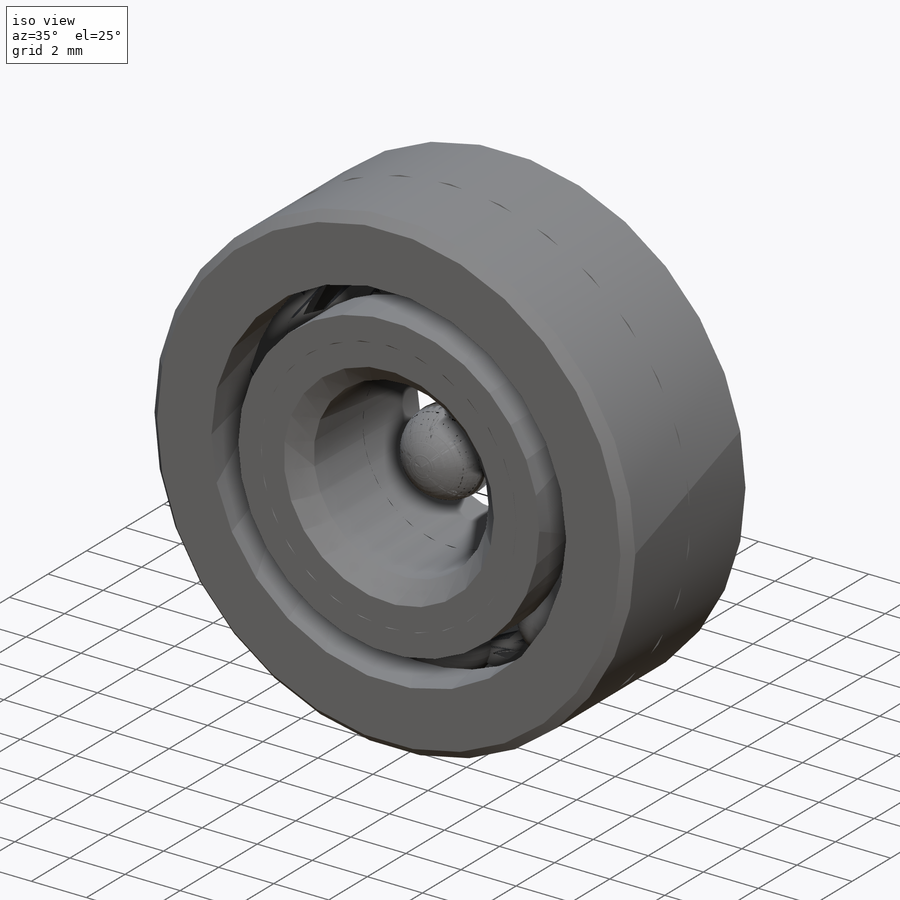
[diagram: iso view]
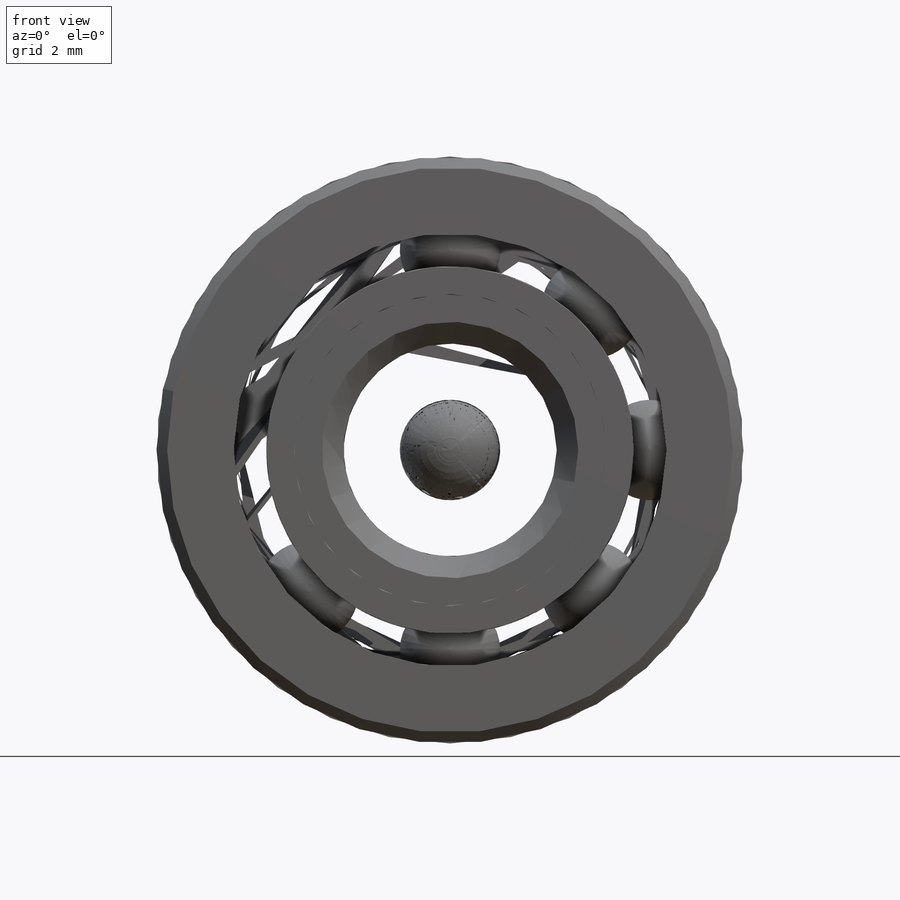
[diagram: front view]
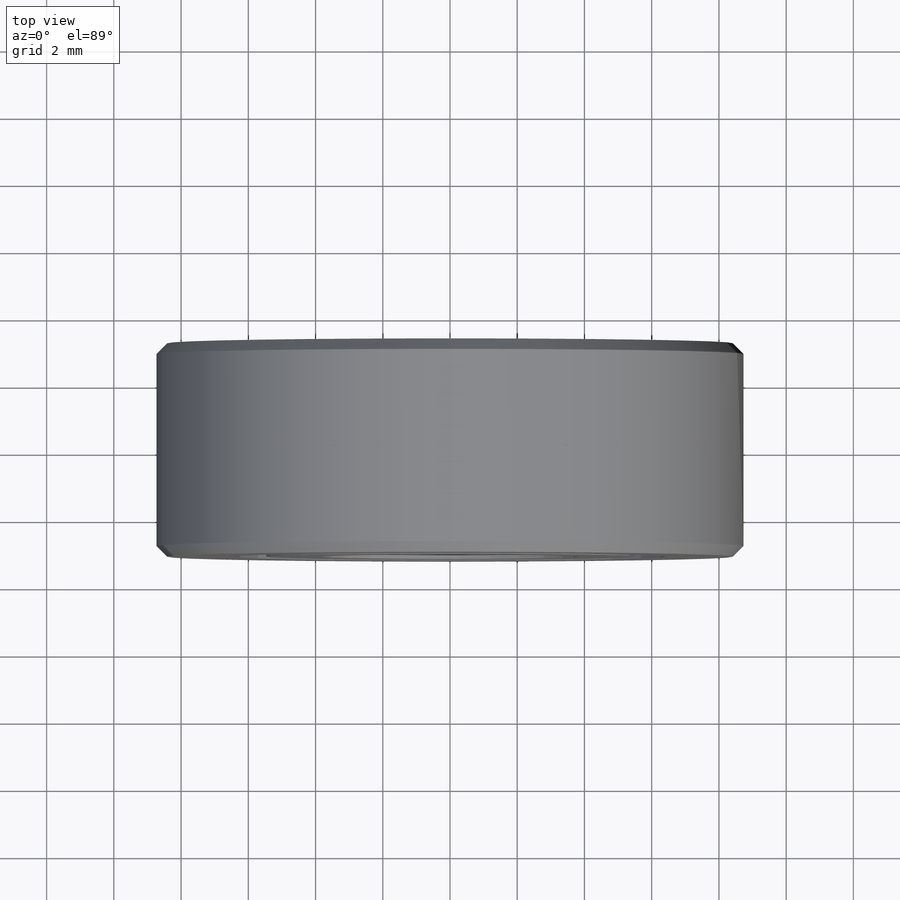
[diagram: top view]
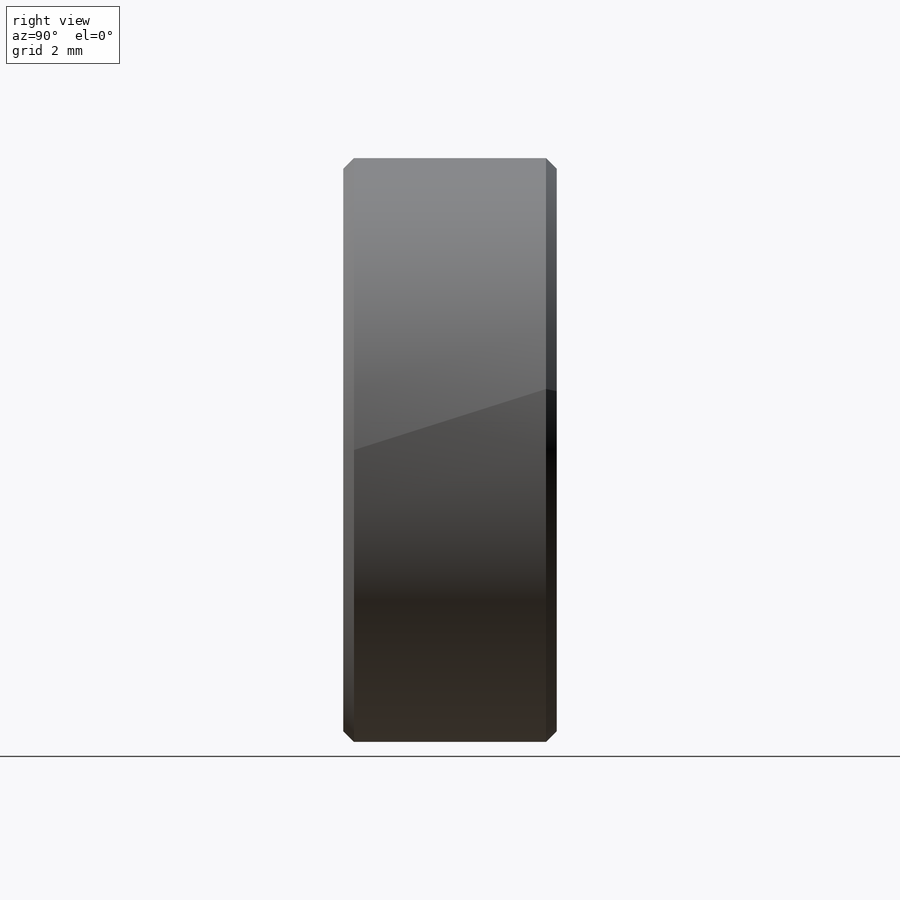
[diagram: right view]
SOLIDWORKS PART (.sldprt)
format: sldprt  version: not decoded by parser v0  size: 672,768 bytes
history: native  units: mm
features: sketch x5, revolve x5, material x1, pattern_circular x1 (+13 scaffold rows collapsed)
feature tree (25):
  scaffold x13  (default folders/planes/origin — collapsed)
  material  "Cast Alloy Steel"
  sketch  "Sketch1"  dims[c1.D3=~8.087863mm c1.Width=6.35mm c1.OD=17.4625mm c1.D1=~8.793076mm c2.D1=45.0deg c2.D2=0.3175mm c2.Shaft Dia=6.35mm c2.D3=~2.822222mm c2.D4=~0.488462mm]
  revolve  "Revolve1"  Angle=360deg
  sketch  "Sketch2"  dims[c1.D1=~3.168868mm c2.D1=45.0deg]
  revolve  "Revolve2"  Angle=360deg
  sketch  "Sketch3"
  revolve  "Revolve3"  Angle=360deg
  sketch  "Sketch4"
  revolve  "Revolve4"  Angle=360deg
  pattern_circular  "CirPattern1"  Count=8 Angle=45deg Balls=8
  sketch  "Sketch5"
  revolve  "Revolve5"  Angle=360deg
decode coverage: 8 of 11 modeling features carry decoded parameters
note: ~ marks probable driven/reference dimensions
note: suppression state not decoded; provenance and decode notes live in map.json
